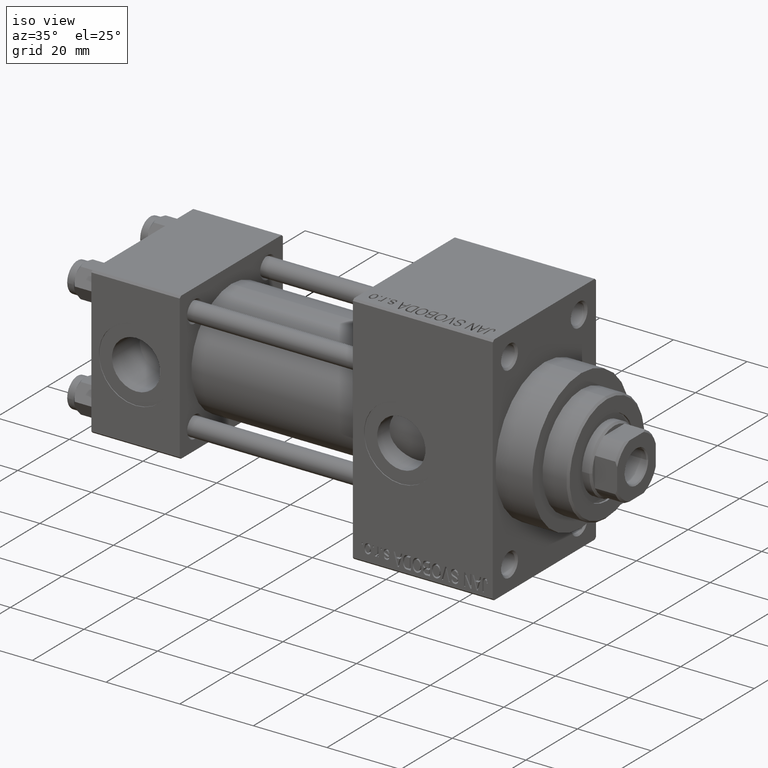
[diagram: clean part render]
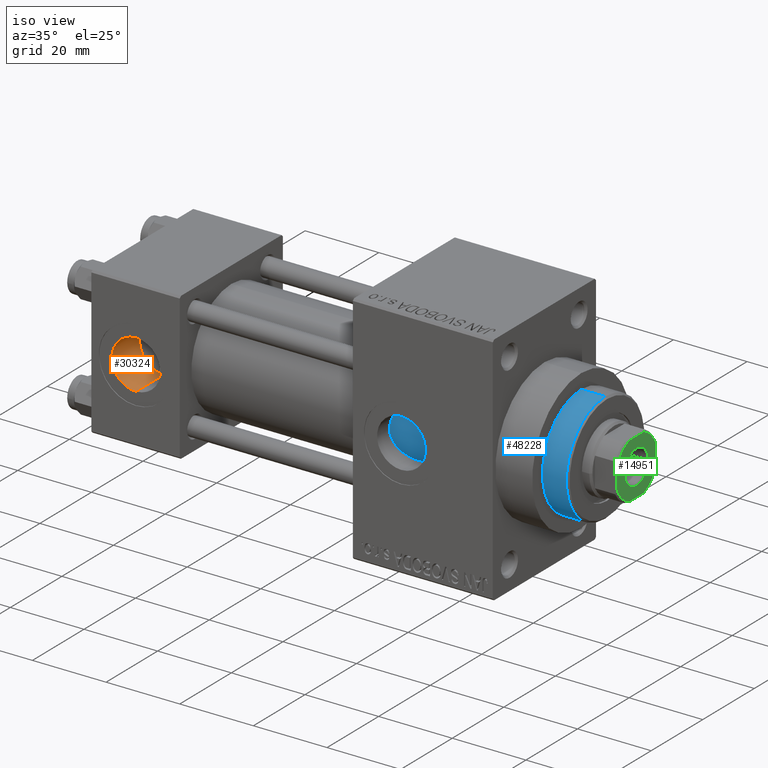
[diagram: same view with three faces highlighted in distinct colors, each labeled with its STEP entity id]
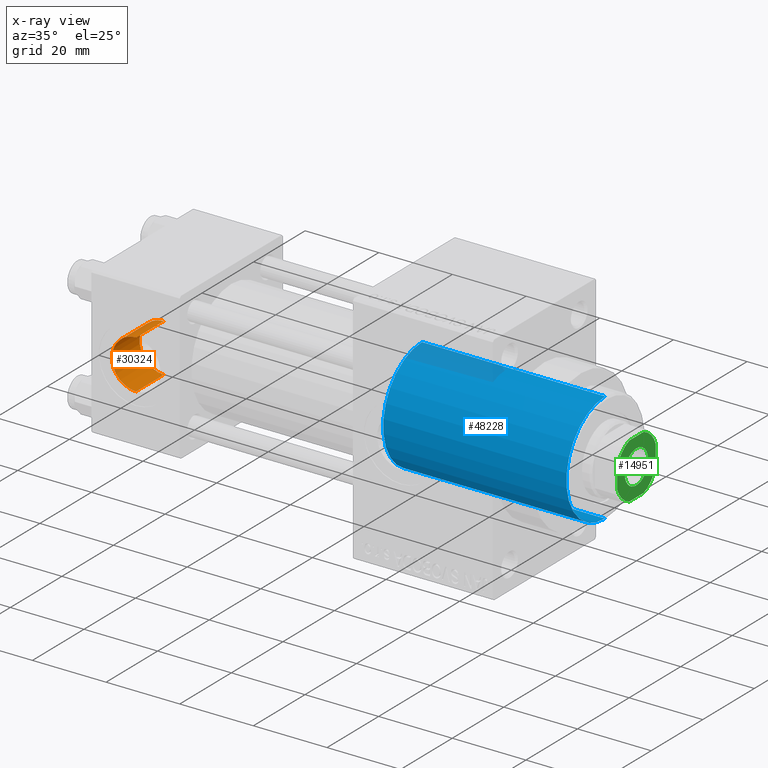
[diagram: x-ray of the same camera — body ghosted, the three highlighted faces saturated]
A machine part, iso view with three faces highlighted in distinct colors.
The next image is the same camera in x-ray (body ghosted, the three faces saturated) — at least one of them is partly hidden behind the body in this view.
Their STEP definitions:

[orange] entity #30324 — the highlighted cylindrical surface (edge-blend (fillet) strip) has radius 6.58 mm, axis along (-0, -1, -0).
#1938 = CARTESIAN_POINT ( 'NONE',  ( 12.00000000000000000, -9.039999999999977831, -6.579999999999999183 ) ) ;
#2423 = EDGE_CURVE ( 'NONE', #3901, #32299, #29115, .T. ) ;
#2963 = EDGE_LOOP ( 'NONE', ( #45856, #47742, #41711, #12843 ) ) ;
#3040 = CARTESIAN_POINT ( 'NONE',  ( 12.00000000000000000, -19.80000000000000426, -1.717376241217039812E-15 ) ) ;
#3840 = CARTESIAN_POINT ( 'NONE',  ( 12.00000000000000000, -9.039999999999977831, -7.840950111415154262E-16 ) ) ;
#3901 = VERTEX_POINT ( 'NONE', #18140 ) ;
#4561 = DIRECTION ( 'NONE',  ( 0.000000000000000000, 0.000000000000000000, -1.000000000000000000 ) ) ;
#6661 = CARTESIAN_POINT ( 'NONE',  ( 12.00000000000000000, -9.100000000000004974, 6.579999999999997407 ) ) ;
#12843 = ORIENTED_EDGE ( 'NONE', *, *, #17960, .F. ) ;
#13946 = DIRECTION ( 'NONE',  ( 0.000000000000000000, -1.000000000000000000, -8.673617379884036705E-17 ) ) ;
#14473 = CARTESIAN_POINT ( 'NONE',  ( 12.00000000000000000, -19.80000000000000426, -6.580000000000000071 ) ) ;
#14554 = CIRCLE ( 'NONE', #45368, 6.579999999999998295 ) ;
#14577 = CARTESIAN_POINT ( 'NONE',  ( 12.00000000000000000, -9.100000000000004974, -7.892991815694479182E-16 ) ) ;
#14909 = VERTEX_POINT ( 'NONE', #16701 ) ;
#16701 = CARTESIAN_POINT ( 'NONE',  ( 12.00000000000000000, -9.039999999999977831, 6.579999999999997407 ) ) ;
#17960 = EDGE_CURVE ( 'NONE', #22831, #32299, #40342, .T. ) ;
#18140 = CARTESIAN_POINT ( 'NONE',  ( 12.00000000000000000, -19.80000000000000426, 6.579999999999996518 ) ) ;
#21530 = DIRECTION ( 'NONE',  ( -0.000000000000000000, -1.000000000000000000, -8.673617379884036705E-17 ) ) ;
#21532 = CARTESIAN_POINT ( 'NONE',  ( 12.00000000000000000, -9.100000000000004974, -6.579999999999999183 ) ) ;
#21792 = AXIS2_PLACEMENT_3D ( 'NONE', #14577, #36872, #44546 ) ;
#21986 = AXIS2_PLACEMENT_3D ( 'NONE', #3040, #13946, #44406 ) ;
#22543 = EDGE_CURVE ( 'NONE', #22831, #14909, #14554, .T. ) ;
#22831 = VERTEX_POINT ( 'NONE', #1938 ) ;
#23377 = DIRECTION ( 'NONE',  ( -0.000000000000000000, 1.000000000000000000, 8.673617379884039170E-17 ) ) ;
#28937 = FACE_OUTER_BOUND ( 'NONE', #2963, .T. ) ;
#29115 = CIRCLE ( 'NONE', #21986, 6.579999999999998295 ) ;
#29387 = VECTOR ( 'NONE', #33393, 1000.000000000000000 ) ;
#30324 = ADVANCED_FACE ( 'NONE', ( #28937 ), #36376, .F. ) ;
#30659 = EDGE_CURVE ( 'NONE', #14909, #3901, #47780, .T. ) ;
#32299 = VERTEX_POINT ( 'NONE', #14473 ) ;
#33393 = DIRECTION ( 'NONE',  ( -0.000000000000000000, -1.000000000000000000, -8.673617379884036705E-17 ) ) ;
#36376 = CYLINDRICAL_SURFACE ( 'NONE', #21792, 6.579999999999998295 ) ;
#36872 = DIRECTION ( 'NONE',  ( -0.000000000000000000, -1.000000000000000000, -8.673617379884036705E-17 ) ) ;
#40342 = LINE ( 'NONE', #21532, #29387 ) ;
#41711 = ORIENTED_EDGE ( 'NONE', *, *, #2423, .T. ) ;
#44406 = DIRECTION ( 'NONE',  ( 0.000000000000000000, 0.000000000000000000, -1.000000000000000000 ) ) ;
#44546 = DIRECTION ( 'NONE',  ( 0.000000000000000000, 0.000000000000000000, -1.000000000000000000 ) ) ;
#45368 = AXIS2_PLACEMENT_3D ( 'NONE', #3840, #23377, #4561 ) ;
#45856 = ORIENTED_EDGE ( 'NONE', *, *, #22543, .T. ) ;
#47102 = VECTOR ( 'NONE', #21530, 1000.000000000000000 ) ;
#47742 = ORIENTED_EDGE ( 'NONE', *, *, #30659, .T. ) ;
#47780 = LINE ( 'NONE', #6661, #47102 ) ;

[blue] entity #48228 — the highlighted cylindrical surface (partial cylindrical patch) has radius 15 mm, axis along (-1, 0, 0).
#725 = LINE ( 'NONE', #4200, #11301 ) ;
#1993 = EDGE_CURVE ( 'NONE', #21869, #41151, #25766, .T. ) ;
#4200 = CARTESIAN_POINT ( 'NONE',  ( 15.00000000000000000, 1.836970198721029589E-15, 43.25999999999999801 ) ) ;
#4492 = CARTESIAN_POINT ( 'NONE',  ( 0.000000000000000000, 0.000000000000000000, 49.75999999999998380 ) ) ;
#6725 = AXIS2_PLACEMENT_3D ( 'NONE', #23136, #38241, #26611 ) ;
#7356 = ORIENTED_EDGE ( 'NONE', *, *, #26312, .T. ) ;
#7721 = DIRECTION ( 'NONE',  ( 0.000000000000000000, 0.000000000000000000, -1.000000000000000000 ) ) ;
#8195 = VERTEX_POINT ( 'NONE', #19290 ) ;
#11301 = VECTOR ( 'NONE', #19080, 1000.000000000000000 ) ;
#15972 = CIRCLE ( 'NONE', #38890, 15.00000000000000000 ) ;
#15973 = VERTEX_POINT ( 'NONE', #33255 ) ;
#19080 = DIRECTION ( 'NONE',  ( -0.000000000000000000, -0.000000000000000000, -1.000000000000000000 ) ) ;
#19168 = EDGE_CURVE ( 'NONE', #21869, #8195, #15972, .T. ) ;
#19290 = CARTESIAN_POINT ( 'NONE',  ( 15.00000000000000000, 1.836970198721029589E-15, 49.75999999999998380 ) ) ;
#20519 = EDGE_CURVE ( 'NONE', #8195, #15973, #725, .T. ) ;
#21310 = DIRECTION ( 'NONE',  ( -0.000000000000000000, -0.000000000000000000, -1.000000000000000000 ) ) ;
#21869 = VERTEX_POINT ( 'NONE', #29124 ) ;
#22045 = CARTESIAN_POINT ( 'NONE',  ( -15.00000000000000000, 0.000000000000000000, 43.25999999999999801 ) ) ;
#23025 = CARTESIAN_POINT ( 'NONE',  ( -15.00000000000000000, 0.000000000000000000, 0.000000000000000000 ) ) ;
#23136 = CARTESIAN_POINT ( 'NONE',  ( 0.000000000000000000, 0.000000000000000000, 0.000000000000000000 ) ) ;
#24990 = AXIS2_PLACEMENT_3D ( 'NONE', #44788, #36369, #48259 ) ;
#25766 = LINE ( 'NONE', #22045, #34595 ) ;
#26312 = EDGE_CURVE ( 'NONE', #15973, #41151, #37598, .T. ) ;
#26611 = DIRECTION ( 'NONE',  ( 1.000000000000000000, 0.000000000000000000, 0.000000000000000000 ) ) ;
#29124 = CARTESIAN_POINT ( 'NONE',  ( -15.00000000000000000, 0.000000000000000000, 49.75999999999998380 ) ) ;
#30726 = DIRECTION ( 'NONE',  ( 1.000000000000000000, 0.000000000000000000, 0.000000000000000000 ) ) ;
#31203 = ORIENTED_EDGE ( 'NONE', *, *, #1993, .F. ) ;
#33255 = CARTESIAN_POINT ( 'NONE',  ( 15.00000000000000000, 1.836970198721029589E-15, 0.000000000000000000 ) ) ;
#34595 = VECTOR ( 'NONE', #21310, 1000.000000000000000 ) ;
#36369 = DIRECTION ( 'NONE',  ( -0.000000000000000000, -0.000000000000000000, -1.000000000000000000 ) ) ;
#36617 = CYLINDRICAL_SURFACE ( 'NONE', #24990, 15.00000000000000000 ) ;
#37598 = CIRCLE ( 'NONE', #6725, 15.00000000000000000 ) ;
#38241 = DIRECTION ( 'NONE',  ( 0.000000000000000000, 0.000000000000000000, 1.000000000000000000 ) ) ;
#38890 = AXIS2_PLACEMENT_3D ( 'NONE', #4492, #7721, #30726 ) ;
#40084 = FACE_OUTER_BOUND ( 'NONE', #46336, .T. ) ;
#41151 = VERTEX_POINT ( 'NONE', #23025 ) ;
#41289 = ORIENTED_EDGE ( 'NONE', *, *, #20519, .T. ) ;
#44788 = CARTESIAN_POINT ( 'NONE',  ( 0.000000000000000000, 0.000000000000000000, 43.25999999999999801 ) ) ;
#45836 = ORIENTED_EDGE ( 'NONE', *, *, #19168, .T. ) ;
#46336 = EDGE_LOOP ( 'NONE', ( #45836, #41289, #7356, #31203 ) ) ;
#48228 = ADVANCED_FACE ( 'NONE', ( #40084 ), #36617, .T. ) ;
#48259 = DIRECTION ( 'NONE',  ( -1.000000000000000000, 0.000000000000000000, 0.000000000000000000 ) ) ;

[green] entity #14951 — the highlighted planar face has unit normal (1, 0, 0).
#56 = LINE ( 'NONE', #3306, #14524 ) ;
#1504 = LINE ( 'NONE', #38162, #32088 ) ;
#1735 = ORIENTED_EDGE ( 'NONE', *, *, #38694, .T. ) ;
#2632 = DIRECTION ( 'NONE',  ( -0.000000000000000000, 0.000000000000000000, 1.000000000000000000 ) ) ;
#2891 = CIRCLE ( 'NONE', #17937, 7.999999999999887201 ) ;
#2959 = CARTESIAN_POINT ( 'NONE',  ( 7.500000000000000888, -2.783882181414683465, 110.0000000000000000 ) ) ;
#3306 = CARTESIAN_POINT ( 'NONE',  ( 7.500000000000000000, 7.500000000000000000, 110.0000000000000000 ) ) ;
#3315 = AXIS2_PLACEMENT_3D ( 'NONE', #28557, #16945, #12980 ) ;
#3421 = VERTEX_POINT ( 'NONE', #39738 ) ;
#3536 = CARTESIAN_POINT ( 'NONE',  ( 7.500000000000000888, 2.783882181414685686, 110.0000000000000000 ) ) ;
#3776 = ORIENTED_EDGE ( 'NONE', *, *, #31820, .T. ) ;
#3951 = VERTEX_POINT ( 'NONE', #30461 ) ;
#4233 = DIRECTION ( 'NONE',  ( -1.000000000000000000, -1.156482317317871478E-16, -0.000000000000000000 ) ) ;
#4408 = DIRECTION ( 'NONE',  ( 1.000000000000000000, 0.000000000000000000, 0.000000000000000000 ) ) ;
#5246 = CARTESIAN_POINT ( 'NONE',  ( 0.000000000000000000, 0.000000000000000000, 110.0000000000000000 ) ) ;
#5484 = DIRECTION ( 'NONE',  ( -0.000000000000000000, 0.000000000000000000, 1.000000000000000000 ) ) ;
#5585 = EDGE_LOOP ( 'NONE', ( #6684, #14785, #1735, #33182, #22999, #24799, #33600, #35068 ) ) ;
#5736 = DIRECTION ( 'NONE',  ( 1.000000000000000000, 0.000000000000000000, 0.000000000000000000 ) ) ;
#5788 = FACE_OUTER_BOUND ( 'NONE', #5585, .T. ) ;
#5818 = VECTOR ( 'NONE', #4233, 1000.000000000000000 ) ;
#6684 = ORIENTED_EDGE ( 'NONE', *, *, #21400, .T. ) ;
#7017 = DIRECTION ( 'NONE',  ( -1.156482317317871478E-16, 1.000000000000000000, -0.000000000000000000 ) ) ;
#7625 = CARTESIAN_POINT ( 'NONE',  ( 4.549999999999998934, 0.000000000000000000, 110.0000000000000000 ) ) ;
#7952 = CARTESIAN_POINT ( 'NONE',  ( -7.500000000000000000, 7.499999999999998224, 110.0000000000000000 ) ) ;
#8452 = VERTEX_POINT ( 'NONE', #36660 ) ;
#10735 = EDGE_CURVE ( 'NONE', #3421, #18627, #19763, .T. ) ;
#12980 = DIRECTION ( 'NONE',  ( 1.000000000000000000, 0.000000000000000000, 0.000000000000000000 ) ) ;
#14524 = VECTOR ( 'NONE', #7017, 1000.000000000000000 ) ;
#14571 = CARTESIAN_POINT ( 'NONE',  ( 0.000000000000000000, 0.000000000000000000, 110.0000000000000000 ) ) ;
#14785 = ORIENTED_EDGE ( 'NONE', *, *, #45976, .T. ) ;
#14951 = ADVANCED_FACE ( 'NONE', ( #24618, #5788 ), #31777, .T. ) ;
#16042 = VECTOR ( 'NONE', #18630, 1000.000000000000000 ) ;
#16550 = CARTESIAN_POINT ( 'NONE',  ( 0.000000000000000000, 0.000000000000000000, 110.0000000000000000 ) ) ;
#16623 = DIRECTION ( 'NONE',  ( 1.156482317317871725E-16, -1.000000000000000000, 0.000000000000000000 ) ) ;
#16945 = DIRECTION ( 'NONE',  ( -0.000000000000000000, 0.000000000000000000, 1.000000000000000000 ) ) ;
#17076 = CIRCLE ( 'NONE', #47103, 7.999999999999954703 ) ;
#17763 = CARTESIAN_POINT ( 'NONE',  ( 0.000000000000000000, 0.000000000000000000, 110.0000000000000000 ) ) ;
#17937 = AXIS2_PLACEMENT_3D ( 'NONE', #5246, #36190, #5736 ) ;
#18627 = VERTEX_POINT ( 'NONE', #2959 ) ;
#18630 = DIRECTION ( 'NONE',  ( 1.000000000000000000, 0.000000000000000000, 0.000000000000000000 ) ) ;
#18870 = LINE ( 'NONE', #22333, #16042 ) ;
#19594 = VERTEX_POINT ( 'NONE', #42324 ) ;
#19763 = CIRCLE ( 'NONE', #26086, 7.999999999999887201 ) ;
#21015 = AXIS2_PLACEMENT_3D ( 'NONE', #16550, #34858, #4408 ) ;
#21272 = DIRECTION ( 'NONE',  ( -0.000000000000000000, 0.000000000000000000, 1.000000000000000000 ) ) ;
#21400 = EDGE_CURVE ( 'NONE', #18627, #44824, #56, .T. ) ;
#21758 = CARTESIAN_POINT ( 'NONE',  ( -7.499999999999999112, 2.783882181414884638, 110.0000000000000000 ) ) ;
#21830 = CIRCLE ( 'NONE', #27337, 7.999999999999954703 ) ;
#22333 = CARTESIAN_POINT ( 'NONE',  ( -7.499999999999998224, -7.500000000000000000, 110.0000000000000000 ) ) ;
#22541 = CIRCLE ( 'NONE', #42340, 4.549999999999998934 ) ;
#22999 = ORIENTED_EDGE ( 'NONE', *, *, #28047, .T. ) ;
#24066 = CARTESIAN_POINT ( 'NONE',  ( 0.000000000000000000, 0.000000000000000000, 110.0000000000000000 ) ) ;
#24618 = FACE_BOUND ( 'NONE', #25694, .T. ) ;
#24799 = ORIENTED_EDGE ( 'NONE', *, *, #48274, .T. ) ;
#25694 = EDGE_LOOP ( 'NONE', ( #41217, #3776 ) ) ;
#26086 = AXIS2_PLACEMENT_3D ( 'NONE', #17763, #2632, #36070 ) ;
#26770 = LINE ( 'NONE', #7952, #5818 ) ;
#26845 = EDGE_CURVE ( 'NONE', #27140, #48235, #17076, .T. ) ;
#27140 = VERTEX_POINT ( 'NONE', #35571 ) ;
#27337 = AXIS2_PLACEMENT_3D ( 'NONE', #14571, #21272, #32632 ) ;
#27777 = DIRECTION ( 'NONE',  ( 1.000000000000000000, 0.000000000000000000, 0.000000000000000000 ) ) ;
#27914 = CARTESIAN_POINT ( 'NONE',  ( -4.549999999999998934, 5.572142936120455355E-16, 110.0000000000000000 ) ) ;
#28047 = EDGE_CURVE ( 'NONE', #48235, #8452, #1504, .T. ) ;
#28557 = CARTESIAN_POINT ( 'NONE',  ( 0.000000000000000000, 0.000000000000000000, 110.0000000000000000 ) ) ;
#30461 = CARTESIAN_POINT ( 'NONE',  ( 2.783882181414688350, 7.499999999999999112, 110.0000000000000000 ) ) ;
#31777 = PLANE ( 'NONE',  #3315 ) ;
#31820 = EDGE_CURVE ( 'NONE', #34073, #41379, #42358, .T. ) ;
#32088 = VECTOR ( 'NONE', #16623, 1000.000000000000000 ) ;
#32632 = DIRECTION ( 'NONE',  ( 1.000000000000000000, 0.000000000000000000, 0.000000000000000000 ) ) ;
#33182 = ORIENTED_EDGE ( 'NONE', *, *, #26845, .T. ) ;
#33600 = ORIENTED_EDGE ( 'NONE', *, *, #38022, .T. ) ;
#34073 = VERTEX_POINT ( 'NONE', #27914 ) ;
#34709 = CARTESIAN_POINT ( 'NONE',  ( 0.000000000000000000, 0.000000000000000000, 110.0000000000000000 ) ) ;
#34858 = DIRECTION ( 'NONE',  ( 0.000000000000000000, -0.000000000000000000, -1.000000000000000000 ) ) ;
#35068 = ORIENTED_EDGE ( 'NONE', *, *, #10735, .T. ) ;
#35571 = CARTESIAN_POINT ( 'NONE',  ( -2.783882181414885082, 7.499999999999999112, 110.0000000000000000 ) ) ;
#35687 = DIRECTION ( 'NONE',  ( 1.000000000000000000, 0.000000000000000000, 0.000000000000000000 ) ) ;
#36070 = DIRECTION ( 'NONE',  ( 1.000000000000000000, 0.000000000000000000, 0.000000000000000000 ) ) ;
#36190 = DIRECTION ( 'NONE',  ( -0.000000000000000000, 0.000000000000000000, 1.000000000000000000 ) ) ;
#36660 = CARTESIAN_POINT ( 'NONE',  ( -7.499999999999997335, -2.783882181414887302, 110.0000000000000000 ) ) ;
#38022 = EDGE_CURVE ( 'NONE', #19594, #3421, #18870, .T. ) ;
#38162 = CARTESIAN_POINT ( 'NONE',  ( -7.500000000000000000, 7.499999999999998224, 110.0000000000000000 ) ) ;
#38694 = EDGE_CURVE ( 'NONE', #3951, #27140, #26770, .T. ) ;
#39738 = CARTESIAN_POINT ( 'NONE',  ( 2.783882181414686574, -7.500000000000000000, 110.0000000000000000 ) ) ;
#41217 = ORIENTED_EDGE ( 'NONE', *, *, #42883, .T. ) ;
#41379 = VERTEX_POINT ( 'NONE', #7625 ) ;
#42324 = CARTESIAN_POINT ( 'NONE',  ( -2.783882181414881973, -7.500000000000000000, 110.0000000000000000 ) ) ;
#42340 = AXIS2_PLACEMENT_3D ( 'NONE', #24066, #46607, #27777 ) ;
#42358 = CIRCLE ( 'NONE', #21015, 4.549999999999998934 ) ;
#42883 = EDGE_CURVE ( 'NONE', #41379, #34073, #22541, .T. ) ;
#44824 = VERTEX_POINT ( 'NONE', #3536 ) ;
#45976 = EDGE_CURVE ( 'NONE', #44824, #3951, #2891, .T. ) ;
#46607 = DIRECTION ( 'NONE',  ( 0.000000000000000000, -0.000000000000000000, -1.000000000000000000 ) ) ;
#47103 = AXIS2_PLACEMENT_3D ( 'NONE', #34709, #5484, #35687 ) ;
#48235 = VERTEX_POINT ( 'NONE', #21758 ) ;
#48274 = EDGE_CURVE ( 'NONE', #8452, #19594, #21830, .T. ) ;